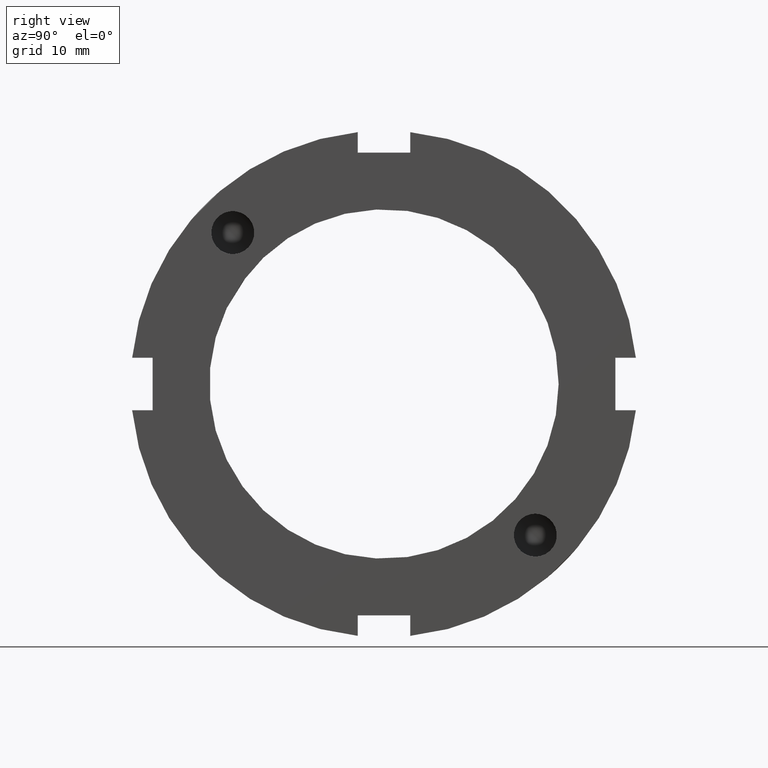
[diagram: clean part render]
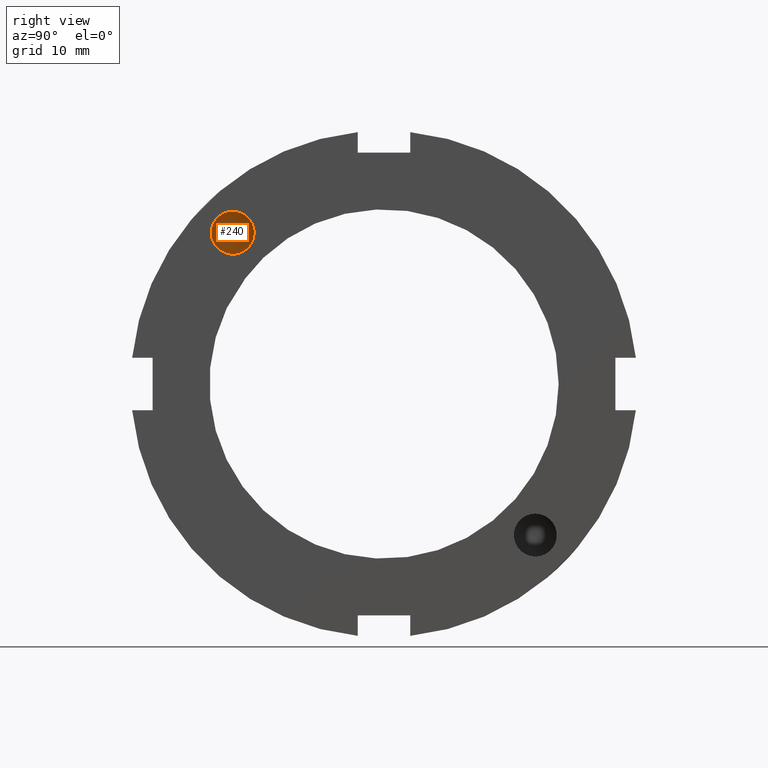
[diagram: same view with one face highlighted and labeled with its STEP entity id]
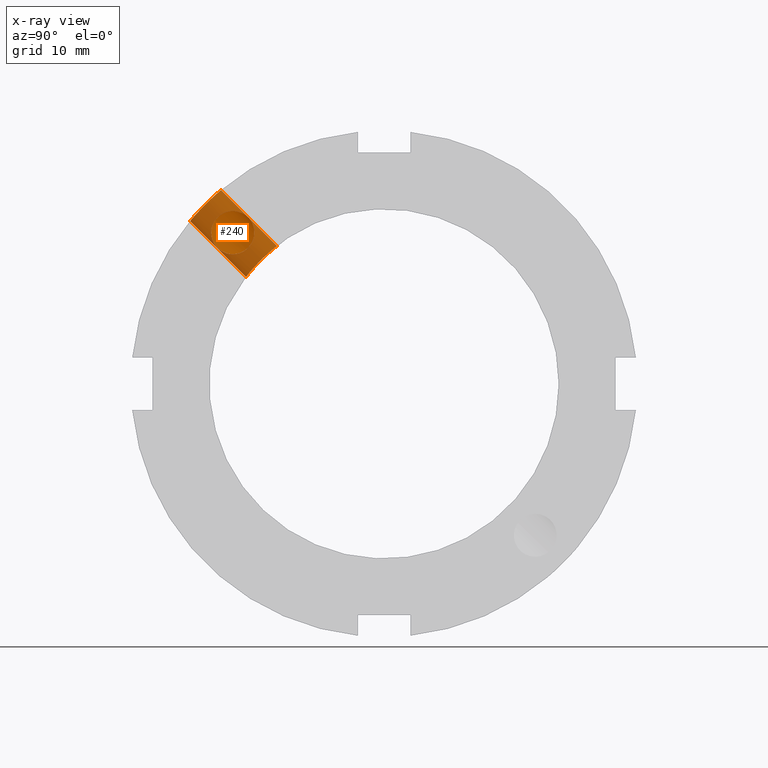
[diagram: x-ray of the same camera — body ghosted, the highlighted face saturated]
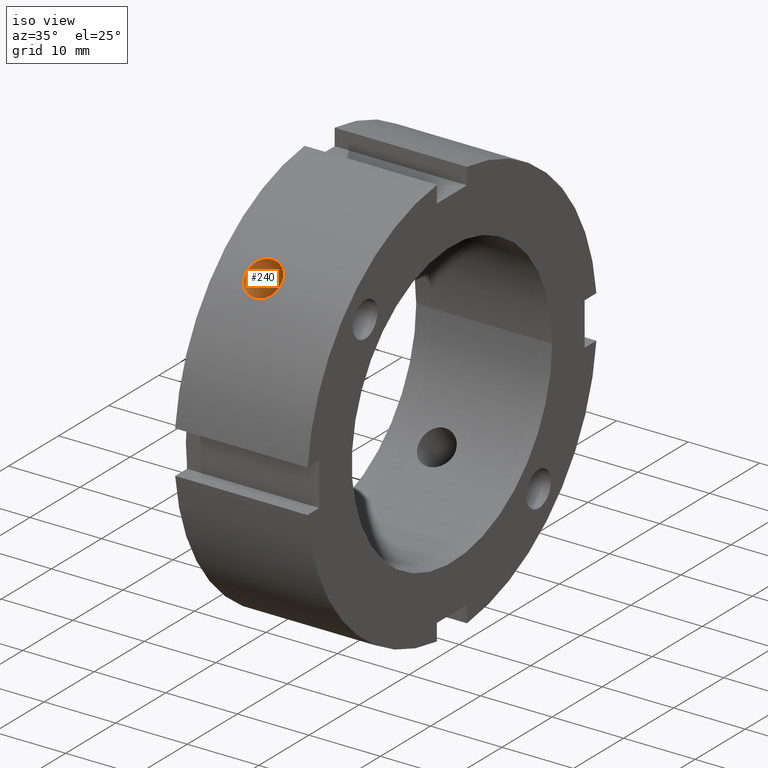
[diagram: same view with one face highlighted and labeled with its STEP entity id]
A machine part, right view. The second image highlights one B-rep face of the part: STEP entity #240.
The next image is the same camera in x-ray: the body ghosted, the highlighted face saturated — about 58% of this face is hidden behind the body in this view.
A second angle (iso view) of the same face is appended — the face is thin or edge-on in the first view.
In plain terms, the highlighted cylindrical surface (bore or boss wall) has radius 2.5 mm, axis along (0, -0.7071, 0.7071).
Its self-contained STEP definition (entity closure, byte-faithful):
#84=CARTESIAN_POINT('',(7.453627325014675,-15.585694117523282,19.062538160617549));
#85=VERTEX_POINT('',#84);
#86=CARTESIAN_POINT('',(7.453627325014644,-15.585694117523282,19.062538160617553));
#87=CARTESIAN_POINT('',(7.453627325014644,-15.65919449545868,19.136038538552953));
#88=CARTESIAN_POINT('',(7.485845144440728,-15.721749740099904,19.190344293212068));
#89=CARTESIAN_POINT('',(7.564508256890284,-15.844093256853062,19.288784135892108));
#90=CARTESIAN_POINT('',(7.612937817032459,-15.903401967603303,19.331915473377844));
#91=CARTESIAN_POINT('',(7.772228880000018,-16.088421748873991,19.454660206995843));
#92=CARTESIAN_POINT('',(7.89550554551691,-16.218432532021481,19.525458372554812));
#93=CARTESIAN_POINT('',(8.283828024816529,-16.648065161405093,19.708243621454251));
#94=CARTESIAN_POINT('',(8.561851096446016,-16.980966899741215,19.78261613907042));
#95=CARTESIAN_POINT('',(8.987347846502068,-17.602859397720042,19.78261613907042));
#96=CARTESIAN_POINT('',(9.170926118717716,-17.918777307895773,19.732057110939461));
#97=CARTESIAN_POINT('',(9.363473477026187,-18.376624449725831,19.551972429047261));
#98=CARTESIAN_POINT('',(9.414345366287382,-18.526834514403433,19.475000967213369));
#99=CARTESIAN_POINT('',(9.482622830029024,-18.810092283857092,19.290003198885113));
#100=CARTESIAN_POINT('',(9.499999999999991,-18.943128105110823,19.181948216124269));
#101=CARTESIAN_POINT('',(9.499999999999991,-19.181948216124258,18.943128105110834));
#102=CARTESIAN_POINT('',(9.482622830029026,-19.290003198885103,18.810092283857102));
#103=CARTESIAN_POINT('',(9.414345366287385,-19.475000967213351,18.526834514403443));
#104=CARTESIAN_POINT('',(9.36347347702619,-19.551972429047247,18.376624449725846));
#105=CARTESIAN_POINT('',(9.170926118717723,-19.732057110939444,17.918777307895791));
#106=CARTESIAN_POINT('',(8.987347846502082,-19.782616139070392,17.60285939772006));
#107=CARTESIAN_POINT('',(8.561851096446045,-19.782616139070392,16.980966899741237));
#108=CARTESIAN_POINT('',(8.283828024816557,-19.708243621454237,16.648065161405128));
#109=CARTESIAN_POINT('',(7.895505545516956,-19.525458372554802,16.21843253202152));
#110=CARTESIAN_POINT('',(7.772228880000084,-19.454660206995836,16.088421748874026));
#111=CARTESIAN_POINT('',(7.612937817032536,-19.331915473377833,15.90340196760333));
#112=CARTESIAN_POINT('',(7.564508256890386,-19.28878413589209,15.844093256853075));
#113=CARTESIAN_POINT('',(7.485845144440839,-19.190344293212043,15.721749740099913));
#114=CARTESIAN_POINT('',(7.453627325014773,-19.136038538552921,15.659194495458696));
#115=CARTESIAN_POINT('',(7.45362732501478,-18.989037782682129,15.512193739587904));
#116=CARTESIAN_POINT('',(7.485845144440816,-18.926482538040904,15.457887984928774));
#117=CARTESIAN_POINT('',(7.56450825689037,-18.804139021287746,15.359448142248732));
#118=CARTESIAN_POINT('',(7.612937817032542,-18.744830310537498,15.316316804762995));
#119=CARTESIAN_POINT('',(7.772228880000092,-18.559810529266802,15.193572071144994));
#120=CARTESIAN_POINT('',(7.895505545516972,-18.429799746119294,15.122773905586024));
#121=CARTESIAN_POINT('',(8.283828024816573,-18.000167116735692,14.939988656686594));
#122=CARTESIAN_POINT('',(8.561851096446043,-17.667265378399581,14.865616139070411));
#123=CARTESIAN_POINT('',(8.987347846502077,-17.045372880420764,14.865616139070411));
#124=CARTESIAN_POINT('',(9.170926118717727,-16.72945497024504,14.916175167201386));
#125=CARTESIAN_POINT('',(9.363473477026194,-16.271607828414982,15.096259849093585));
#126=CARTESIAN_POINT('',(9.414345366287385,-16.121397763737384,15.173231310927484));
#127=CARTESIAN_POINT('',(9.482622830029024,-15.838139994283724,15.358229079255734));
#128=CARTESIAN_POINT('',(9.499999999999991,-15.705104173029998,15.466284062016582));
#129=CARTESIAN_POINT('',(9.499999999999991,-15.466284062016564,15.705104173030017));
#130=CARTESIAN_POINT('',(9.482622830029023,-15.358229079255711,15.838139994283747));
#131=CARTESIAN_POINT('',(9.414345366287376,-15.173231310927459,16.121397763737409));
#132=CARTESIAN_POINT('',(9.363473477026183,-15.096259849093567,16.271607828415007));
#133=CARTESIAN_POINT('',(9.170926118717709,-14.916175167201368,16.729454970245065));
#134=CARTESIAN_POINT('',(8.987347846502063,-14.865616139070411,17.045372880420796));
#135=CARTESIAN_POINT('',(8.561851096446011,-14.865616139070415,17.66726537839962));
#136=CARTESIAN_POINT('',(8.283828024816526,-14.939988656686587,18.000167116735746));
#137=CARTESIAN_POINT('',(7.895505545516905,-15.122773905586024,18.429799746119354));
#138=CARTESIAN_POINT('',(7.772228880000012,-15.193572071144992,18.559810529266844));
#139=CARTESIAN_POINT('',(7.612937817032455,-15.316316804762987,18.74483031053753));
#140=CARTESIAN_POINT('',(7.564508256890302,-15.359448142248729,18.804139021287778));
#141=CARTESIAN_POINT('',(7.485845144440745,-15.457887984928769,18.926482538040933));
#142=CARTESIAN_POINT('',(7.453627325014635,-15.512193739587881,18.989037782682153));
#143=CARTESIAN_POINT('',(7.453627325014635,-15.585694117523278,19.062538160617553));
#144=B_SPLINE_CURVE_WITH_KNOTS('',3,(#86,#87,#88,#89,#90,#91,#92,#93,#94,#95,#96,#97,#98,#99,#100,#101,#102,#103,#104,#105,#106,#107,#108,#109,#110,#111,#112,#113,#114,#115,#116,#117,#118,#119,#120,#121,#122,#123,#124,#125,#126,#127,#128,#129,#130,#131,#132,#133,#134,#135,#136,#137,#138,#139,#140,#141,#142,#143),.UNSPECIFIED.,.T.,.U.,(4,2,2,2,2,2,2,2,2,2,2,2,2,2,2,2,2,2,2,2,2,2,2,2,2,2,2,2,4),(0.0,0.031183569394737,0.062367138789473,0.124734277578947,0.249468555157893,0.350791347146689,0.401452743141086,0.452114139135484,0.502775535129881,0.553436931124278,0.654759723113072,0.779494000692016,0.841861139481488,0.873044708876224,0.90422827827096,0.935411847665695,0.96659541706043,1.028962555849901,1.153696833428842,1.255019625417636,1.305681021412033,1.356342417406431,1.407003813400828,1.457665209395226,1.558988001384021,1.683722278962967,1.74608941775244,1.777272987147177,1.808456556541913),.UNSPECIFIED.);
#145=EDGE_CURVE('',#85,#85,#144,.T.);
#150=CARTESIAN_POINT('',(6.999999999999991,-59.232592379533749,59.232592379533756));
#151=DIRECTION('',(0.0,-0.707106781186547,0.707106781186548));
#152=DIRECTION('',(1.0,0.0,0.0));
#153=AXIS2_PLACEMENT_3D('',#150,#151,#152);
#154=CYLINDRICAL_SURFACE('',#153,2.5);
#155=CARTESIAN_POINT('',(6.999999999999991,-22.197524660780719,18.661990754847992));
#156=VERTEX_POINT('',#155);
#157=CARTESIAN_POINT('',(6.999999999999991,-22.197524660780722,18.661990754847988));
#158=CARTESIAN_POINT('',(6.685926821433307,-22.197524660780722,18.661990754847988));
#159=CARTESIAN_POINT('',(6.351026040286827,-22.15711292575266,18.710390970576551));
#160=CARTESIAN_POINT('',(5.735124046939606,-21.991088060538893,18.905248724555669));
#161=CARTESIAN_POINT('',(5.454109536044088,-21.865271681287403,19.051490941357077));
#162=CARTESIAN_POINT('',(5.010356974116497,-21.570654137208784,19.384434288694266));
#163=CARTESIAN_POINT('',(4.817982172770842,-21.382143077268246,19.593338020832572));
#164=CARTESIAN_POINT('',(4.562799379874514,-20.961012666023965,20.043225423786364));
#165=CARTESIAN_POINT('',(4.499999999999991,-20.728179512282058,20.284013796537703));
#166=CARTESIAN_POINT('',(4.499999999999991,-20.2840137965377,20.728179512282061));
#167=CARTESIAN_POINT('',(4.562799379874514,-20.04322542378636,20.961012666023962));
#168=CARTESIAN_POINT('',(4.817982172770844,-19.593338020832569,21.382143077268239));
#169=CARTESIAN_POINT('',(5.010356974116497,-19.384434288694262,21.570654137208788));
#170=CARTESIAN_POINT('',(5.454109536044088,-19.051490941357073,21.865271681287403));
#171=CARTESIAN_POINT('',(5.735124046939606,-18.905248724555666,21.991088060538893));
#172=CARTESIAN_POINT('',(6.351026040286826,-18.710390970576547,22.15711292575266));
#173=CARTESIAN_POINT('',(6.685926821433307,-18.661990754847988,22.197524660780722));
#174=CARTESIAN_POINT('',(7.314073178566673,-18.661990754847988,22.197524660780719));
#175=CARTESIAN_POINT('',(7.648973959713153,-18.710390970576544,22.157112925752671));
#176=CARTESIAN_POINT('',(8.264875953060374,-18.905248724555662,21.9910880605389));
#177=CARTESIAN_POINT('',(8.545890463955892,-19.05149094135707,21.865271681287403));
#178=CARTESIAN_POINT('',(8.989643025883485,-19.384434288694262,21.570654137208788));
#179=CARTESIAN_POINT('',(9.182017827229139,-19.593338020832569,21.382143077268239));
#180=CARTESIAN_POINT('',(9.437200620125466,-20.043225423786364,20.961012666023962));
#181=CARTESIAN_POINT('',(9.499999999999991,-20.2840137965377,20.728179512282061));
#182=CARTESIAN_POINT('',(9.499999999999991,-20.728179512282058,20.284013796537703));
#183=CARTESIAN_POINT('',(9.43720062012547,-20.961012666023958,20.043225423786364));
#184=CARTESIAN_POINT('',(9.182017827229142,-21.382143077268235,19.593338020832572));
#185=CARTESIAN_POINT('',(8.989643025883487,-21.570654137208784,19.384434288694266));
#186=CARTESIAN_POINT('',(8.545890463955894,-21.865271681287403,19.051490941357077));
#187=CARTESIAN_POINT('',(8.264875953060377,-21.991088060538893,18.905248724555669));
#188=CARTESIAN_POINT('',(7.648973959713156,-22.15711292575266,18.710390970576551));
#189=CARTESIAN_POINT('',(7.314073178566673,-22.197524660780722,18.661990754847988));
#190=CARTESIAN_POINT('',(6.999999999999991,-22.197524660780722,18.661990754847988));
#191=B_SPLINE_CURVE_WITH_KNOTS('',3,(#157,#158,#159,#160,#161,#162,#163,#164,#165,#166,#167,#168,#169,#170,#171,#172,#173,#174,#175,#176,#177,#178,#179,#180,#181,#182,#183,#184,#185,#186,#187,#188,#189,#190),.UNSPECIFIED.,.T.,.U.,(4,2,2,2,2,2,2,2,2,2,2,2,2,2,2,2,4),(0.0,0.094221953570005,0.18844390714001,0.282665684012033,0.376887460884057,0.47110923775608,0.565331014628104,0.659552968198109,0.753774921768113,0.847996875338118,0.942218828908123,1.036440605780147,1.13066238265217,1.224884159524194,1.319105936396217,1.413327889966222,1.507549843536227),.UNSPECIFIED.);
#192=EDGE_CURVE('',#156,#156,#191,.T.);
#193=ORIENTED_EDGE('',*,*,#192,.F.);
#194=EDGE_LOOP('',(#193));
#195=FACE_OUTER_BOUND('',#194,.T.);
#196=ORIENTED_EDGE('',*,*,#145,.T.);
#197=EDGE_LOOP('',(#196));
#198=FACE_BOUND('',#197,.T.);
#199=CARTESIAN_POINT('',(6.999999999999991,-15.798982153368646,12.263448247435914));
#200=VERTEX_POINT('',#199);
#201=CARTESIAN_POINT('',(6.999999999999991,-15.798982153368648,12.26344824743591));
#202=CARTESIAN_POINT('',(7.314260048212735,-15.798982153368648,12.26344824743591));
#203=CARTESIAN_POINT('',(7.649240061450704,-15.760348281083491,12.313729270633617));
#204=CARTESIAN_POINT('',(8.265089704693066,-15.600850565277671,12.515189491950379));
#205=CARTESIAN_POINT('',(8.545987686324247,-15.479690541518636,12.666047294780203));
#206=CARTESIAN_POINT('',(8.989544366845442,-15.193879826291587,13.007520452827418));
#207=CARTESIAN_POINT('',(9.181891468164904,-15.010052497889516,13.220943998802557));
#208=CARTESIAN_POINT('',(9.437128337929737,-14.595444003476585,13.677282279292415));
#209=CARTESIAN_POINT('',(9.499999999999991,-14.364349178471571,13.91992206899033));
#210=CARTESIAN_POINT('',(9.499999999999991,-13.919922068990328,14.364349178471571));
#211=CARTESIAN_POINT('',(9.437128337929737,-13.677282279292415,14.595444003476587));
#212=CARTESIAN_POINT('',(9.181891468164903,-13.220943998802554,15.010052497889522));
#213=CARTESIAN_POINT('',(8.98954436684544,-13.007520452827414,15.193879826291589));
#214=CARTESIAN_POINT('',(8.545987686324247,-12.666047294780199,15.479690541518636));
#215=CARTESIAN_POINT('',(8.265089704693065,-12.515189491950379,15.600850565277671));
#216=CARTESIAN_POINT('',(7.649240061450703,-12.313729270633617,15.760348281083491));
#217=CARTESIAN_POINT('',(7.314260048212735,-12.263448247435916,15.798982153368648));
#218=CARTESIAN_POINT('',(6.685739951787246,-12.263448247435916,15.798982153368648));
#219=CARTESIAN_POINT('',(6.350759938549278,-12.313729270633617,15.760348281083491));
#220=CARTESIAN_POINT('',(5.734910295306916,-12.515189491950379,15.600850565277671));
#221=CARTESIAN_POINT('',(5.454012313675733,-12.666047294780199,15.479690541518636));
#222=CARTESIAN_POINT('',(5.010455633154542,-13.007520452827418,15.193879826291589));
#223=CARTESIAN_POINT('',(4.818108531835079,-13.220943998802557,15.010052497889518));
#224=CARTESIAN_POINT('',(4.562871662070246,-13.677282279292415,14.595444003476587));
#225=CARTESIAN_POINT('',(4.499999999999991,-13.919922068990328,14.364349178471571));
#226=CARTESIAN_POINT('',(4.499999999999991,-14.364349178471571,13.91992206899033));
#227=CARTESIAN_POINT('',(4.562871662070244,-14.595444003476585,13.67728227929242));
#228=CARTESIAN_POINT('',(4.818108531835078,-15.010052497889518,13.220943998802559));
#229=CARTESIAN_POINT('',(5.010455633154541,-15.193879826291589,13.007520452827418));
#230=CARTESIAN_POINT('',(5.454012313675735,-15.479690541518636,12.666047294780203));
#231=CARTESIAN_POINT('',(5.734910295306919,-15.600850565277671,12.515189491950379));
#232=CARTESIAN_POINT('',(6.350759938549281,-15.760348281083491,12.313729270633617));
#233=CARTESIAN_POINT('',(6.685739951787246,-15.798982153368648,12.263448247435914));
#234=CARTESIAN_POINT('',(6.999999999999991,-15.798982153368648,12.263448247435914));
#235=B_SPLINE_CURVE_WITH_KNOTS('',3,(#201,#202,#203,#204,#205,#206,#207,#208,#209,#210,#211,#212,#213,#214,#215,#216,#217,#218,#219,#220,#221,#222,#223,#224,#225,#226,#227,#228,#229,#230,#231,#232,#233,#234),.UNSPECIFIED.,.T.,.U.,(4,2,2,2,2,2,2,2,2,2,2,2,2,2,2,2,4),(0.0,0.094278014463823,0.188556028927647,0.282833255784844,0.377110482642041,0.471387709499238,0.565664936356435,0.659942950820258,0.754220965284081,0.848498979747905,0.942776994211728,1.037054221068925,1.131331447926122,1.225608674783319,1.319885901640516,1.41416391610434,1.508441930568163),.UNSPECIFIED.);
#236=EDGE_CURVE('',#200,#200,#235,.T.);
#237=ORIENTED_EDGE('',*,*,#236,.F.);
#238=EDGE_LOOP('',(#237));
#239=FACE_BOUND('',#238,.T.);
#240=ADVANCED_FACE('',(#195,#198,#239),#154,.F.);